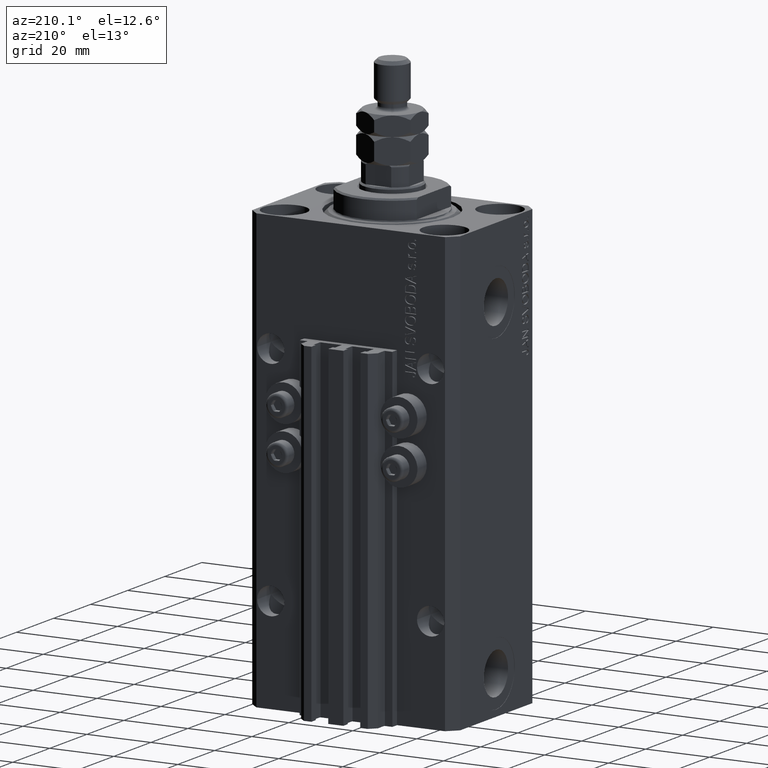
[diagram: clean part render]
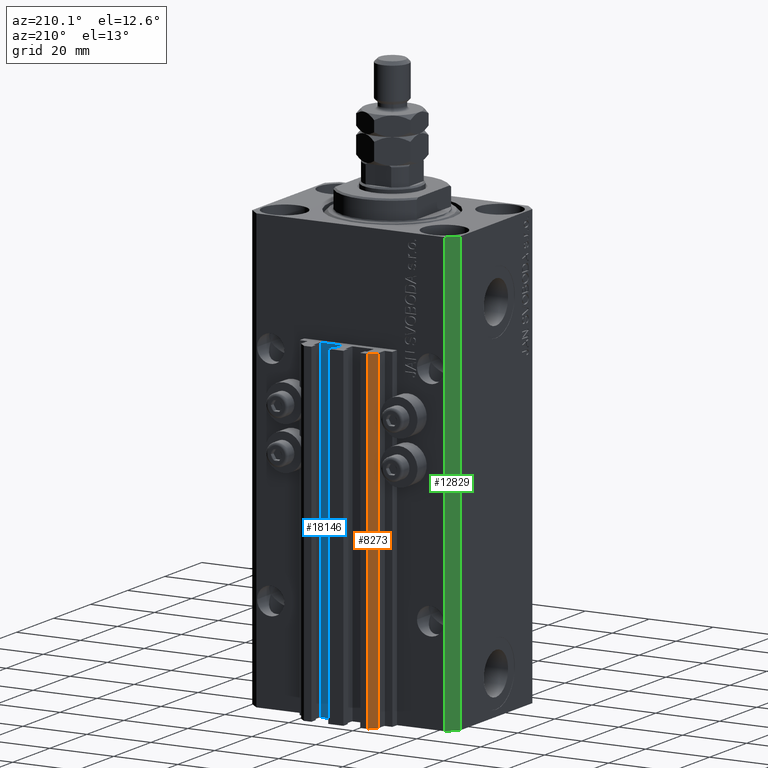
[diagram: same view with three faces highlighted in distinct colors, each labeled with its STEP entity id]
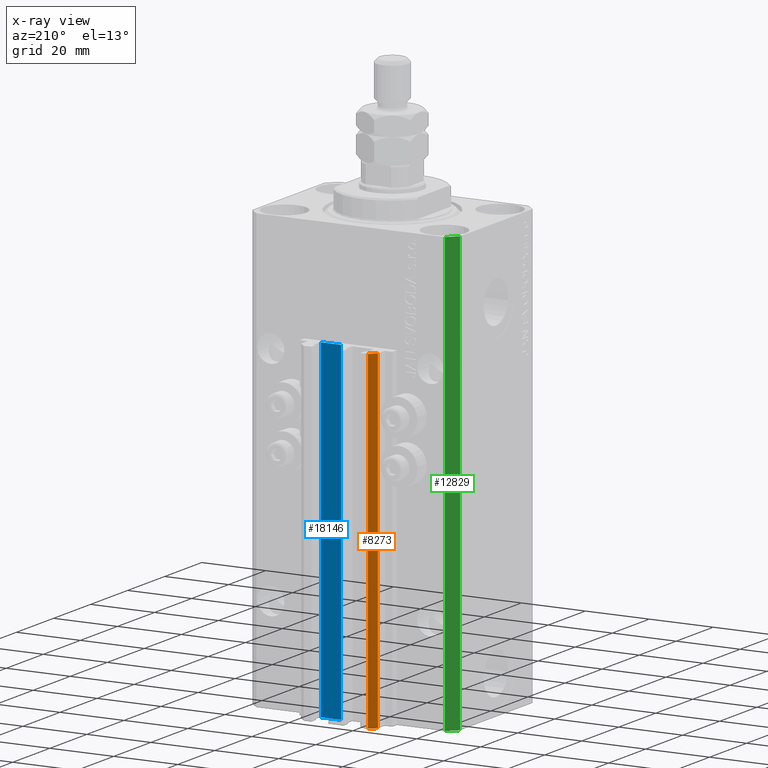
[diagram: x-ray of the same camera — body ghosted, the three highlighted faces saturated]
A machine part, auxiliary view with three faces highlighted in distinct colors.
The next image is the same camera in x-ray (body ghosted, the three faces saturated) — at least one of them is partly hidden behind the body in this view.
Their STEP definitions:

[orange] entity #8273 — the highlighted planar face has unit normal (-0.7071, 0.7071, 0).
#1959 = VECTOR ( 'NONE', #22462, 1000.000000000000000 ) ;
#2787 = CARTESIAN_POINT ( 'NONE',  ( -12.00000000000000000, 28.49999999999948841, -137.0000000000000000 ) ) ;
#2789 = ORIENTED_EDGE ( 'NONE', *, *, #14234, .F. ) ;
#3940 = DIRECTION ( 'NONE',  ( 0.000000000000000000, 0.000000000000000000, 1.000000000000000000 ) ) ;
#4433 = VERTEX_POINT ( 'NONE', #39947 ) ;
#6869 = EDGE_LOOP ( 'NONE', ( #2789, #21173, #31685, #10012 ) ) ;
#8273 = ADVANCED_FACE ( 'NONE', ( #38739 ), #40938, .T. ) ;
#10012 = ORIENTED_EDGE ( 'NONE', *, *, #25048, .T. ) ;
#10601 = CARTESIAN_POINT ( 'NONE',  ( -10.00000000000000000, 30.49999999999948841, -33.00000000000000000 ) ) ;
#11179 = LINE ( 'NONE', #14660, #46228 ) ;
#12676 = VERTEX_POINT ( 'NONE', #17490 ) ;
#14234 = EDGE_CURVE ( 'NONE', #21708, #45887, #33852, .T. ) ;
#14660 = CARTESIAN_POINT ( 'NONE',  ( -10.00000000000000000, 30.49999999999948841, -137.0000000000000000 ) ) ;
#15451 = DIRECTION ( 'NONE',  ( -0.7071067811865472397, -0.7071067811865479058, 0.000000000000000000 ) ) ;
#17490 = CARTESIAN_POINT ( 'NONE',  ( -10.00000000000000000, 30.49999999999948841, -137.0000000000000000 ) ) ;
#18931 = LINE ( 'NONE', #22901, #46123 ) ;
#21173 = ORIENTED_EDGE ( 'NONE', *, *, #48139, .F. ) ;
#21708 = VERTEX_POINT ( 'NONE', #10601 ) ;
#22462 = DIRECTION ( 'NONE',  ( 0.000000000000000000, 0.000000000000000000, 1.000000000000000000 ) ) ;
#22901 = CARTESIAN_POINT ( 'NONE',  ( -10.00000000000000000, 30.49999999999948841, -137.0000000000000000 ) ) ;
#25048 = EDGE_CURVE ( 'NONE', #4433, #45887, #48151, .T. ) ;
#28488 = AXIS2_PLACEMENT_3D ( 'NONE', #36956, #44191, #43705 ) ;
#31685 = ORIENTED_EDGE ( 'NONE', *, *, #46898, .T. ) ;
#32808 = CARTESIAN_POINT ( 'NONE',  ( -12.00000000000000000, 28.49999999999948841, -33.00000000000000000 ) ) ;
#33852 = LINE ( 'NONE', #37865, #39888 ) ;
#34354 = DIRECTION ( 'NONE',  ( -0.7071067811865472397, -0.7071067811865479058, 0.000000000000000000 ) ) ;
#36956 = CARTESIAN_POINT ( 'NONE',  ( -10.00000000000000000, 30.49999999999948841, -137.0000000000000000 ) ) ;
#37865 = CARTESIAN_POINT ( 'NONE',  ( -10.00000000000000000, 30.49999999999948841, -33.00000000000000000 ) ) ;
#38739 = FACE_OUTER_BOUND ( 'NONE', #6869, .T. ) ;
#39888 = VECTOR ( 'NONE', #34354, 999.9999999999998863 ) ;
#39947 = CARTESIAN_POINT ( 'NONE',  ( -12.00000000000000000, 28.49999999999948841, -137.0000000000000000 ) ) ;
#40938 = PLANE ( 'NONE',  #28488 ) ;
#43705 = DIRECTION ( 'NONE',  ( -0.7071067811865472397, -0.7071067811865479058, 0.000000000000000000 ) ) ;
#44191 = DIRECTION ( 'NONE',  ( -0.7071067811865479058, 0.7071067811865472397, 0.000000000000000000 ) ) ;
#45887 = VERTEX_POINT ( 'NONE', #32808 ) ;
#46123 = VECTOR ( 'NONE', #15451, 999.9999999999998863 ) ;
#46228 = VECTOR ( 'NONE', #3940, 1000.000000000000000 ) ;
#46898 = EDGE_CURVE ( 'NONE', #12676, #4433, #18931, .T. ) ;
#48139 = EDGE_CURVE ( 'NONE', #12676, #21708, #11179, .T. ) ;
#48151 = LINE ( 'NONE', #2787, #1959 ) ;

[blue] entity #18146 — the highlighted planar face has unit normal (0, 1, 0).
#1476 = ORIENTED_EDGE ( 'NONE', *, *, #48928, .T. ) ;
#5051 = DIRECTION ( 'NONE',  ( 0.000000000000000000, 0.000000000000000000, 1.000000000000000000 ) ) ;
#5674 = VECTOR ( 'NONE', #12957, 1000.000000000000000 ) ;
#7583 = CARTESIAN_POINT ( 'NONE',  ( 8.200000000000001066, 24.49999999999949196, -137.0000000000000000 ) ) ;
#8555 = CARTESIAN_POINT ( 'NONE',  ( 8.200000000000001066, 24.49999999999949196, -137.0000000000000000 ) ) ;
#9364 = VERTEX_POINT ( 'NONE', #29523 ) ;
#12957 = DIRECTION ( 'NONE',  ( 0.000000000000000000, 0.000000000000000000, 1.000000000000000000 ) ) ;
#13797 = VERTEX_POINT ( 'NONE', #34663 ) ;
#15063 = DIRECTION ( 'NONE',  ( 0.000000000000000000, 0.000000000000000000, 1.000000000000000000 ) ) ;
#15170 = VERTEX_POINT ( 'NONE', #45843 ) ;
#15540 = VERTEX_POINT ( 'NONE', #25045 ) ;
#17173 = CARTESIAN_POINT ( 'NONE',  ( 1.800000000000000933, 24.49999999999949196, -137.0000000000000000 ) ) ;
#18146 = ADVANCED_FACE ( 'NONE', ( #33226 ), #25752, .T. ) ;
#18401 = AXIS2_PLACEMENT_3D ( 'NONE', #7583, #21776, #15063 ) ;
#19084 = ORIENTED_EDGE ( 'NONE', *, *, #37330, .F. ) ;
#20976 = DIRECTION ( 'NONE',  ( -1.000000000000000000, 0.000000000000000000, 0.000000000000000000 ) ) ;
#21137 = VECTOR ( 'NONE', #44551, 1000.000000000000000 ) ;
#21776 = DIRECTION ( 'NONE',  ( 0.000000000000000000, 1.000000000000000000, -0.000000000000000000 ) ) ;
#21902 = VECTOR ( 'NONE', #20976, 1000.000000000000000 ) ;
#25045 = CARTESIAN_POINT ( 'NONE',  ( 1.800000000000000933, 24.49999999999949196, -137.0000000000000000 ) ) ;
#25752 = PLANE ( 'NONE',  #18401 ) ;
#27537 = EDGE_CURVE ( 'NONE', #9364, #15170, #28934, .T. ) ;
#27609 = VECTOR ( 'NONE', #5051, 1000.000000000000000 ) ;
#28934 = LINE ( 'NONE', #47406, #21902 ) ;
#29523 = CARTESIAN_POINT ( 'NONE',  ( 8.200000000000001066, 24.49999999999949196, -33.00000000000000000 ) ) ;
#31522 = ORIENTED_EDGE ( 'NONE', *, *, #33009, .T. ) ;
#33009 = EDGE_CURVE ( 'NONE', #13797, #15540, #34058, .T. ) ;
#33226 = FACE_OUTER_BOUND ( 'NONE', #34714, .T. ) ;
#34058 = LINE ( 'NONE', #49281, #21137 ) ;
#34663 = CARTESIAN_POINT ( 'NONE',  ( 8.200000000000001066, 24.49999999999949196, -137.0000000000000000 ) ) ;
#34714 = EDGE_LOOP ( 'NONE', ( #48980, #19084, #31522, #1476 ) ) ;
#37330 = EDGE_CURVE ( 'NONE', #13797, #9364, #39178, .T. ) ;
#39178 = LINE ( 'NONE', #8555, #27609 ) ;
#44551 = DIRECTION ( 'NONE',  ( -1.000000000000000000, 0.000000000000000000, 0.000000000000000000 ) ) ;
#45843 = CARTESIAN_POINT ( 'NONE',  ( 1.800000000000000933, 24.49999999999949196, -33.00000000000000000 ) ) ;
#47082 = LINE ( 'NONE', #17173, #5674 ) ;
#47406 = CARTESIAN_POINT ( 'NONE',  ( 8.200000000000001066, 24.49999999999949196, -33.00000000000000000 ) ) ;
#48928 = EDGE_CURVE ( 'NONE', #15540, #15170, #47082, .T. ) ;
#48980 = ORIENTED_EDGE ( 'NONE', *, *, #27537, .F. ) ;
#49281 = CARTESIAN_POINT ( 'NONE',  ( 8.200000000000001066, 24.49999999999949196, -137.0000000000000000 ) ) ;

[green] entity #12829 — the highlighted planar face has unit normal (-0.7071, 0.7071, 0).
#518 = DIRECTION ( 'NONE',  ( -0.7071067811865475727, 0.7071067811865475727, 0.000000000000000000 ) ) ;
#1513 = VECTOR ( 'NONE', #46295, 1000.000000000000000 ) ;
#2222 = VECTOR ( 'NONE', #25346, 1000.000000000000114 ) ;
#3400 = CARTESIAN_POINT ( 'NONE',  ( -32.49999999999650413, 19.49999999999949907, 0.000000000000000000 ) ) ;
#3726 = ORIENTED_EDGE ( 'NONE', *, *, #32004, .F. ) ;
#4388 = DIRECTION ( 'NONE',  ( -0.7071067811865474617, -0.7071067811865474617, 0.000000000000000000 ) ) ;
#6389 = ORIENTED_EDGE ( 'NONE', *, *, #22865, .F. ) ;
#6652 = ORIENTED_EDGE ( 'NONE', *, *, #9100, .T. ) ;
#8036 = AXIS2_PLACEMENT_3D ( 'NONE', #42867, #518, #27654 ) ;
#9100 = EDGE_CURVE ( 'NONE', #33988, #40928, #30818, .T. ) ;
#11745 = FACE_OUTER_BOUND ( 'NONE', #28814, .T. ) ;
#12829 = ADVANCED_FACE ( 'NONE', ( #11745 ), #31387, .T. ) ;
#12848 = LINE ( 'NONE', #31264, #17916 ) ;
#13607 = LINE ( 'NONE', #16373, #18612 ) ;
#14178 = CARTESIAN_POINT ( 'NONE',  ( -29.49999999999650413, 22.49999999999949907, 0.000000000000000000 ) ) ;
#16373 = CARTESIAN_POINT ( 'NONE',  ( -29.49999999999650413, 22.49999999999949907, -137.0000000000000000 ) ) ;
#17916 = VECTOR ( 'NONE', #4388, 1000.000000000000114 ) ;
#18612 = VECTOR ( 'NONE', #43254, 1000.000000000000000 ) ;
#19053 = CARTESIAN_POINT ( 'NONE',  ( -29.49999999999650413, 22.49999999999949907, -137.0000000000000000 ) ) ;
#22565 = ORIENTED_EDGE ( 'NONE', *, *, #39298, .T. ) ;
#22865 = EDGE_CURVE ( 'NONE', #35587, #33927, #13607, .T. ) ;
#24612 = LINE ( 'NONE', #28107, #2222 ) ;
#25346 = DIRECTION ( 'NONE',  ( -0.7071067811865474617, -0.7071067811865474617, 0.000000000000000000 ) ) ;
#27654 = DIRECTION ( 'NONE',  ( -0.7071067811865474617, -0.7071067811865474617, 0.000000000000000000 ) ) ;
#28107 = CARTESIAN_POINT ( 'NONE',  ( -29.49999999999650413, 22.49999999999949907, -137.0000000000000000 ) ) ;
#28814 = EDGE_LOOP ( 'NONE', ( #3726, #6389, #22565, #6652 ) ) ;
#30818 = LINE ( 'NONE', #42797, #1513 ) ;
#31264 = CARTESIAN_POINT ( 'NONE',  ( -29.49999999999650413, 22.49999999999949907, 0.000000000000000000 ) ) ;
#31387 = PLANE ( 'NONE',  #8036 ) ;
#32004 = EDGE_CURVE ( 'NONE', #33927, #40928, #12848, .T. ) ;
#33927 = VERTEX_POINT ( 'NONE', #14178 ) ;
#33988 = VERTEX_POINT ( 'NONE', #34312 ) ;
#34312 = CARTESIAN_POINT ( 'NONE',  ( -32.49999999999650413, 19.49999999999949907, -137.0000000000000000 ) ) ;
#35587 = VERTEX_POINT ( 'NONE', #19053 ) ;
#39298 = EDGE_CURVE ( 'NONE', #35587, #33988, #24612, .T. ) ;
#40928 = VERTEX_POINT ( 'NONE', #3400 ) ;
#42797 = CARTESIAN_POINT ( 'NONE',  ( -32.49999999999650413, 19.49999999999949907, -137.0000000000000000 ) ) ;
#42867 = CARTESIAN_POINT ( 'NONE',  ( -29.49999999999650413, 22.49999999999949907, -137.0000000000000000 ) ) ;
#43254 = DIRECTION ( 'NONE',  ( 0.000000000000000000, 0.000000000000000000, 1.000000000000000000 ) ) ;
#46295 = DIRECTION ( 'NONE',  ( 0.000000000000000000, 0.000000000000000000, 1.000000000000000000 ) ) ;